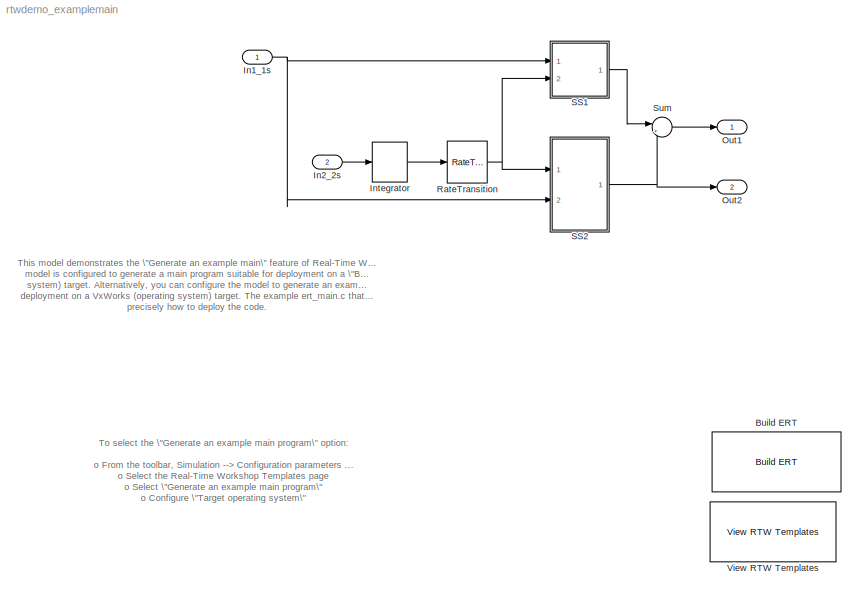
MODEL rtwdemo_examplemain
KIND model
BLOCK [Reference] Build ERT  REF=rtwdemowidgets/Build ERT
  Ports = []
  ShowPortLabels = on
  SourceBlock = rtwdemowidgets/Build ERT
  attrib_overrides = {'TargetOS'}
BLOCK [Inport] In1_1s
  IconDisplay = Port number
  LatchInput = off
  Port = 1
  SampleTime = 1
BLOCK [Inport] In2_2s
  IconDisplay = Port number
  LatchInput = off
  Port = 2
  SampleTime = 2
BLOCK [DiscreteIntegrator] Integrator
  ExternalReset = none
  ICPrevOutput = DiscIntNeverNeededParam
  ICPrevScaledInput = DiscIntNeverNeededParam
  InitialConditionMode = State only (most efficient)
  InitialConditionSource = internal
  IntegratorMethod = Integration: Forward Euler
  Ports = [1, 1]
  SampleTime = -1
  SaturateOnIntegerOverflow = on
BLOCK [Outport] Out1
  BusOutputAsStruct = off
  IconDisplay = Port number
BLOCK [Outport] Out2
  BusOutputAsStruct = off
  IconDisplay = Port number
  Port = 2
BLOCK [RateTransition] RateTransition
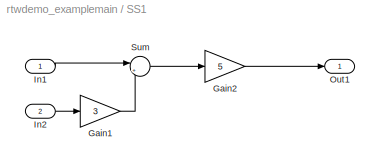
BLOCK [SubSystem] SS1
  MinAlgLoopOccurrences = off
  Ports = [2, 1]
  PropExecContextAcrossSSBoundary = on
  RTWSystemCode = Auto
  TreatAsAtomicUnit = on
BLOCK [Gain] SS1/Gain1
  Gain = 3
BLOCK [Gain] SS1/Gain2
  Gain = 5
BLOCK [Inport] SS1/In1
  IconDisplay = Port number
  LatchInput = off
  Port = 1
BLOCK [Inport] SS1/In2
  IconDisplay = Port number
  LatchInput = off
  Port = 2
BLOCK [Outport] SS1/Out1
  BusOutputAsStruct = off
  IconDisplay = Port number
BLOCK [Sum] SS1/Sum
  IconShape = round
  Inputs = |++
  Ports = [2, 1]
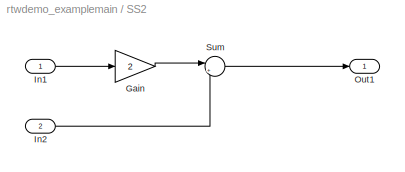
BLOCK [SubSystem] SS2
  MinAlgLoopOccurrences = off
  Ports = [2, 1]
  PropExecContextAcrossSSBoundary = on
  RTWSystemCode = Auto
  TreatAsAtomicUnit = on
BLOCK [Gain] SS2/Gain
  Gain = 2
BLOCK [Inport] SS2/In1
  IconDisplay = Port number
  LatchInput = off
  Port = 1
BLOCK [Inport] SS2/In2
  IconDisplay = Port number
  LatchInput = off
  Port = 2
BLOCK [Outport] SS2/Out1
  BusOutputAsStruct = off
  IconDisplay = Port number
BLOCK [Sum] SS2/Sum
  IconShape = round
  Inputs = |++
  Ports = [2, 1]
BLOCK [Sum] Sum
  IconShape = round
  Inputs = |++
  Ports = [2, 1]
BLOCK [Reference] View RTW Templates  REF=rtwdemowidgets/View RTW Templates
  Ports = []
  ShowPortLabels = on
  SourceBlock = rtwdemowidgets/View RTW Templates
ANNOTATION (root): This model demonstrates the \"Generate an example main\" feature of Real-Time Workshop Embedded Coder. The\nmodel is configured to generate a main program suitable for deployment on a \"Bare Board\" (i.e., no operating\nsystem) target. Alternatively, you can configure the model to generate an example main program for\ndeployment on a VxWorks (operating system) target. The example ert_main.c that i...<+353ch>
ANNOTATION (root): To select the \"Generate an example main program\" option:\n\no From the toolbar, Simulation --> Configuration parameters ...\no Select the Real-Time Workshop Templates page\no Select \"Generate an example main program\"\no Configure \"Target operating system\"
NET In1_1s:1 -> SS1:1, SS2:2
LINE In2_2s:1 -> Integrator:1
LINE Integrator:1 -> RateTransition:1
NET RateTransition:1 -> SS1:2, SS2:1
LINE SS1/Gain1:1 -> SS1/Sum:2
LINE SS1/Gain2:1 -> SS1/Out1:1
LINE SS1/In1:1 -> SS1/Sum:1
LINE SS1/In2:1 -> SS1/Gain1:1
LINE SS1/Sum:1 -> SS1/Gain2:1
LINE SS1:1 -> Sum:1
LINE SS2/Gain:1 -> SS2/Sum:1
LINE SS2/In1:1 -> SS2/Gain:1
LINE SS2/In2:1 -> SS2/Sum:2
LINE SS2/Sum:1 -> SS2/Out1:1
NET SS2:1 -> Out2:1, Sum:2
LINE Sum:1 -> Out1:1
note: NET lines group one-source signal fan-out (src -> all destinations, sorted); 1:1 wires keep LINE
